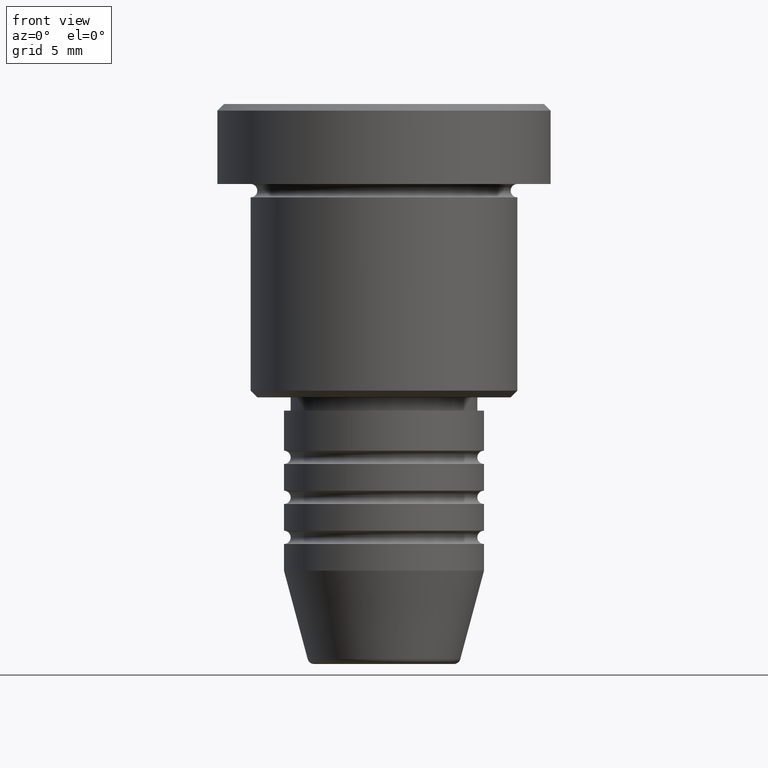
[diagram: clean part render]
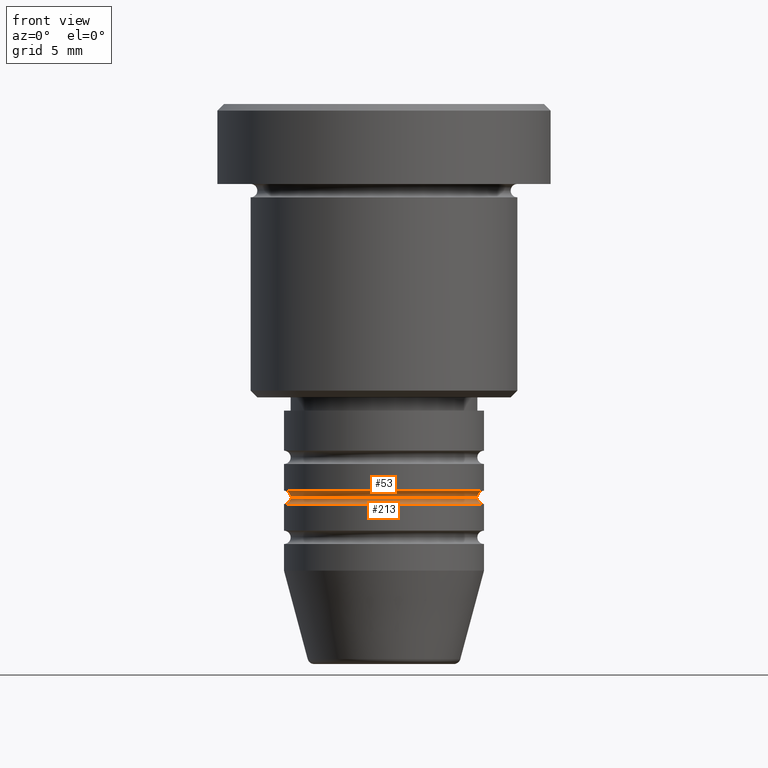
[diagram: same view with one multi-face feature highlighted, each face labeled with its STEP entity id]
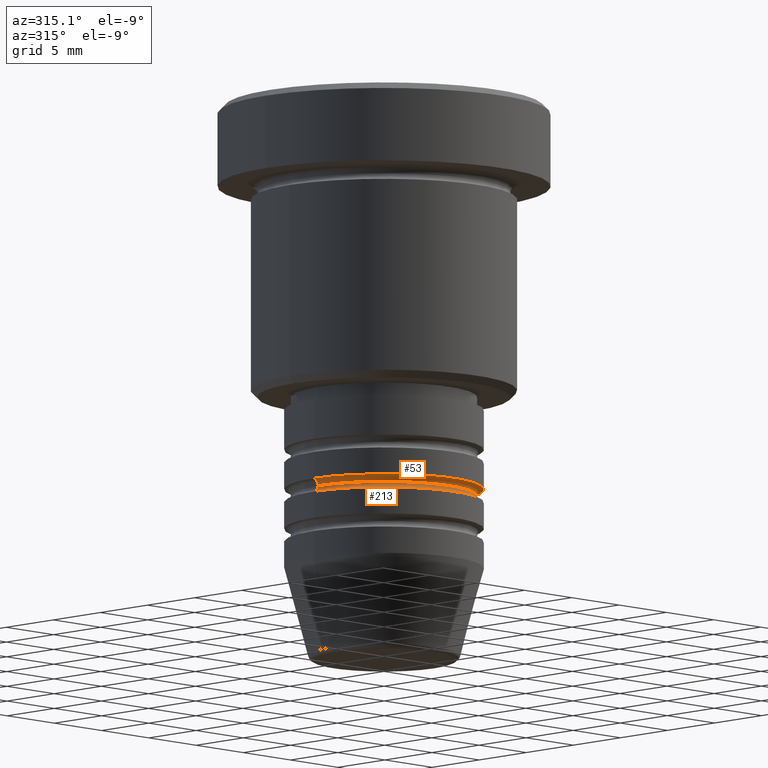
[diagram: same view with one multi-face feature highlighted, each face labeled with its STEP entity id]
A machine part, front view. The highlighted faces form ONE feature: a constant-radius fillet chain: 2 tangent blend faces with common blend radius 0.5 mm. The faces share edges in the B-rep.
A second angle (auxiliary view) of the same feature is appended — it is thin or edge-on in the first view.
Their STEP definitions:
[1] entity #53 (Torus):
#44 = AXIS2_PLACEMENT_3D ( 'NONE', #277, #921, #1004 ) ;
#53 = ADVANCED_FACE ( 'NONE', ( #587 ), #86, .F. ) ;
#65 = CARTESIAN_POINT ( 'NONE',  ( 7.500000000000000000, 9.184850993605147944E-16, -29.49999999999997868 ) ) ;
#81 = EDGE_LOOP ( 'NONE', ( #416, #298, #689, #482 ) ) ;
#86 = TOROIDAL_SURFACE ( 'NONE', #313, 7.500000000000000000, 0.5000000000000000000 ) ;
#125 = DIRECTION ( 'NONE',  ( 0.000000000000000000, 0.000000000000000000, -1.000000000000000000 ) ) ;
#148 = DIRECTION ( 'NONE',  ( 1.000000000000000000, 0.000000000000000000, 0.000000000000000000 ) ) ;
#194 = DIRECTION ( 'NONE',  ( -0.000000000000000000, -1.000000000000000000, -0.000000000000000000 ) ) ;
#195 = CARTESIAN_POINT ( 'NONE',  ( 0.000000000000000000, 0.000000000000000000, -29.49999999999997868 ) ) ;
#242 = CARTESIAN_POINT ( 'NONE',  ( -6.999999999999999112, 8.878689293818310074E-16, -29.49999999999997868 ) ) ;
#277 = CARTESIAN_POINT ( 'NONE',  ( 0.000000000000000000, 0.000000000000000000, -28.99999999999997868 ) ) ;
#298 = ORIENTED_EDGE ( 'NONE', *, *, #1012, .T. ) ;
#313 = AXIS2_PLACEMENT_3D ( 'NONE', #195, #125, #659 ) ;
#359 = CIRCLE ( 'NONE', #962, 6.999999999999999112 ) ;
#412 = CIRCLE ( 'NONE', #496, 0.5000000000000004441 ) ;
#416 = ORIENTED_EDGE ( 'NONE', *, *, #619, .T. ) ;
#482 = ORIENTED_EDGE ( 'NONE', *, *, #1090, .F. ) ;
#496 = AXIS2_PLACEMENT_3D ( 'NONE', #65, #798, #1074 ) ;
#502 = CARTESIAN_POINT ( 'NONE',  ( 7.500000000000000000, 0.000000000000000000, -28.99999999999997868 ) ) ;
#503 = CARTESIAN_POINT ( 'NONE',  ( 0.000000000000000000, 0.000000000000000000, -29.49999999999997868 ) ) ;
#565 = VERTEX_POINT ( 'NONE', #620 ) ;
#587 = FACE_OUTER_BOUND ( 'NONE', #81, .T. ) ;
#596 = AXIS2_PLACEMENT_3D ( 'NONE', #800, #194, #1013 ) ;
#619 = EDGE_CURVE ( 'NONE', #647, #845, #359, .T. ) ;
#620 = CARTESIAN_POINT ( 'NONE',  ( -7.500000000000000000, 9.184850993605147944E-16, -28.99999999999997868 ) ) ;
#647 = VERTEX_POINT ( 'NONE', #242 ) ;
#659 = DIRECTION ( 'NONE',  ( -1.000000000000000000, 0.000000000000000000, 0.000000000000000000 ) ) ;
#689 = ORIENTED_EDGE ( 'NONE', *, *, #1127, .F. ) ;
#798 = DIRECTION ( 'NONE',  ( -1.224646799147353207E-16, 1.000000000000000000, 0.000000000000000000 ) ) ;
#800 = CARTESIAN_POINT ( 'NONE',  ( -7.500000000000000000, 0.000000000000000000, -29.49999999999997868 ) ) ;
#839 = CIRCLE ( 'NONE', #44, 7.500000000000000000 ) ;
#845 = VERTEX_POINT ( 'NONE', #917 ) ;
#917 = CARTESIAN_POINT ( 'NONE',  ( 6.999999999999999112, 0.000000000000000000, -29.49999999999997868 ) ) ;
#921 = DIRECTION ( 'NONE',  ( -0.000000000000000000, -0.000000000000000000, 1.000000000000000000 ) ) ;
#962 = AXIS2_PLACEMENT_3D ( 'NONE', #503, #1132, #148 ) ;
#1004 = DIRECTION ( 'NONE',  ( 1.000000000000000000, 0.000000000000000000, 0.000000000000000000 ) ) ;
#1012 = EDGE_CURVE ( 'NONE', #845, #1047, #412, .T. ) ;
#1013 = DIRECTION ( 'NONE',  ( 0.000000000000000000, 0.000000000000000000, -1.000000000000000000 ) ) ;
#1047 = VERTEX_POINT ( 'NONE', #502 ) ;
#1074 = DIRECTION ( 'NONE',  ( -1.000000000000000000, -1.224646799147351482E-16, 0.000000000000000000 ) ) ;
#1090 = EDGE_CURVE ( 'NONE', #647, #565, #1172, .T. ) ;
#1127 = EDGE_CURVE ( 'NONE', #565, #1047, #839, .T. ) ;
#1132 = DIRECTION ( 'NONE',  ( -0.000000000000000000, -0.000000000000000000, 1.000000000000000000 ) ) ;
#1172 = CIRCLE ( 'NONE', #596, 0.5000000000000004441 ) ;
[2] entity #213 (Torus):
#55 = VERTEX_POINT ( 'NONE', #1010 ) ;
#84 = DIRECTION ( 'NONE',  ( 1.000000000000000000, 0.000000000000000000, 0.000000000000000000 ) ) ;
#87 = TOROIDAL_SURFACE ( 'NONE', #297, 7.500000000000000000, 0.5000000000000000000 ) ;
#131 = CARTESIAN_POINT ( 'NONE',  ( -7.500000000000000000, 9.184850993605147944E-16, -29.99999999999998224 ) ) ;
#148 = DIRECTION ( 'NONE',  ( 1.000000000000000000, 0.000000000000000000, 0.000000000000000000 ) ) ;
#158 = FACE_OUTER_BOUND ( 'NONE', #960, .T. ) ;
#189 = CARTESIAN_POINT ( 'NONE',  ( 0.000000000000000000, 0.000000000000000000, -29.49999999999997868 ) ) ;
#207 = CIRCLE ( 'NONE', #653, 7.500000000000000000 ) ;
#213 = ADVANCED_FACE ( 'NONE', ( #158 ), #87, .F. ) ;
#242 = CARTESIAN_POINT ( 'NONE',  ( -6.999999999999999112, 8.878689293818310074E-16, -29.49999999999997868 ) ) ;
#244 = EDGE_CURVE ( 'NONE', #647, #624, #759, .T. ) ;
#261 = DIRECTION ( 'NONE',  ( 1.224646799147353207E-16, 1.000000000000000000, 0.000000000000000000 ) ) ;
#297 = AXIS2_PLACEMENT_3D ( 'NONE', #189, #544, #979 ) ;
#315 = ORIENTED_EDGE ( 'NONE', *, *, #619, .F. ) ;
#318 = CIRCLE ( 'NONE', #1002, 0.5000000000000004441 ) ;
#323 = ORIENTED_EDGE ( 'NONE', *, *, #1049, .T. ) ;
#339 = DIRECTION ( 'NONE',  ( 0.000000000000000000, -1.000000000000000000, 0.000000000000000000 ) ) ;
#359 = CIRCLE ( 'NONE', #962, 6.999999999999999112 ) ;
#362 = DIRECTION ( 'NONE',  ( 0.000000000000000000, 0.000000000000000000, -1.000000000000000000 ) ) ;
#465 = EDGE_CURVE ( 'NONE', #845, #55, #318, .T. ) ;
#503 = CARTESIAN_POINT ( 'NONE',  ( 0.000000000000000000, 0.000000000000000000, -29.49999999999997868 ) ) ;
#510 = AXIS2_PLACEMENT_3D ( 'NONE', #737, #261, #1086 ) ;
#544 = DIRECTION ( 'NONE',  ( -0.000000000000000000, -0.000000000000000000, 1.000000000000000000 ) ) ;
#553 = ORIENTED_EDGE ( 'NONE', *, *, #244, .T. ) ;
#619 = EDGE_CURVE ( 'NONE', #647, #845, #359, .T. ) ;
#624 = VERTEX_POINT ( 'NONE', #131 ) ;
#647 = VERTEX_POINT ( 'NONE', #242 ) ;
#653 = AXIS2_PLACEMENT_3D ( 'NONE', #1143, #673, #84 ) ;
#673 = DIRECTION ( 'NONE',  ( -0.000000000000000000, -0.000000000000000000, 1.000000000000000000 ) ) ;
#737 = CARTESIAN_POINT ( 'NONE',  ( -7.500000000000000000, 9.184850993605147944E-16, -29.49999999999997868 ) ) ;
#759 = CIRCLE ( 'NONE', #510, 0.5000000000000004441 ) ;
#845 = VERTEX_POINT ( 'NONE', #917 ) ;
#893 = ORIENTED_EDGE ( 'NONE', *, *, #465, .F. ) ;
#917 = CARTESIAN_POINT ( 'NONE',  ( 6.999999999999999112, 0.000000000000000000, -29.49999999999997868 ) ) ;
#960 = EDGE_LOOP ( 'NONE', ( #315, #553, #323, #893 ) ) ;
#962 = AXIS2_PLACEMENT_3D ( 'NONE', #503, #1132, #148 ) ;
#979 = DIRECTION ( 'NONE',  ( 1.000000000000000000, 0.000000000000000000, 0.000000000000000000 ) ) ;
#1002 = AXIS2_PLACEMENT_3D ( 'NONE', #1150, #339, #362 ) ;
#1010 = CARTESIAN_POINT ( 'NONE',  ( 7.500000000000000000, 0.000000000000000000, -29.99999999999998224 ) ) ;
#1049 = EDGE_CURVE ( 'NONE', #624, #55, #207, .T. ) ;
#1086 = DIRECTION ( 'NONE',  ( -1.000000000000000000, 1.224646799147353454E-16, 0.000000000000000000 ) ) ;
#1132 = DIRECTION ( 'NONE',  ( -0.000000000000000000, -0.000000000000000000, 1.000000000000000000 ) ) ;
#1143 = CARTESIAN_POINT ( 'NONE',  ( 0.000000000000000000, 0.000000000000000000, -29.99999999999998224 ) ) ;
#1150 = CARTESIAN_POINT ( 'NONE',  ( 7.500000000000000000, 0.000000000000000000, -29.49999999999997868 ) ) ;